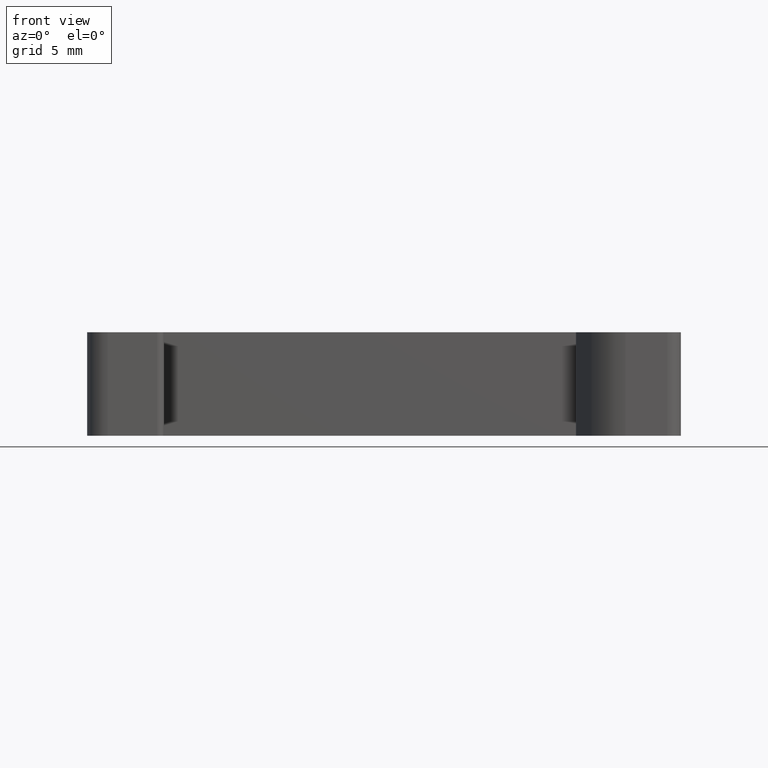
[diagram: clean part render]
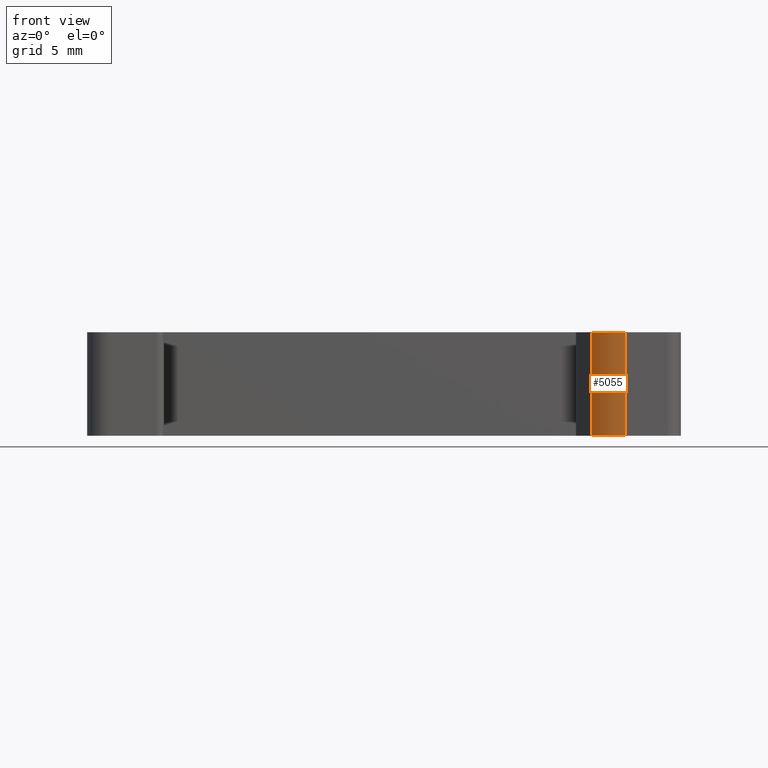
[diagram: same view with one face highlighted and labeled with its STEP entity id]
A machine part, front view. The second image highlights one B-rep face of the part: STEP entity #5055.
In plain terms, the highlighted cylindrical surface (partial cylindrical patch) has radius 3 mm, axis along (0, 0, -1).
Its self-contained STEP definition (entity closure, byte-faithful):
#78 = EDGE_LOOP ( 'NONE', ( #621, #644, #595, #588 ) ) ;
#588 = ORIENTED_EDGE ( 'NONE', *, *, #3712, .T. ) ;
#595 = ORIENTED_EDGE ( 'NONE', *, *, #3695, .T. ) ;
#621 = ORIENTED_EDGE ( 'NONE', *, *, #3733, .T. ) ;
#644 = ORIENTED_EDGE ( 'NONE', *, *, #3714, .T. ) ;
#1593 = CARTESIAN_POINT ( 'NONE',  ( 27.94609250397358500, -31.35797656976660600, 3.702940557380697800E-012 ) ) ;
#1629 = CARTESIAN_POINT ( 'NONE',  ( 30.40354850698706800, -32.63724701435248200, 7.499999999996208400 ) ) ;
#1641 = CARTESIAN_POINT ( 'NONE',  ( 27.94609250397358500, -31.35797656976660600, 7.499999999996208400 ) ) ;
#1645 = CARTESIAN_POINT ( 'NONE',  ( 30.40354850698706800, -32.63724707526569100, 3.703157397815194900E-012 ) ) ;
#1920 = VERTEX_POINT ( 'NONE', #1593 ) ;
#1931 = VERTEX_POINT ( 'NONE', #1629 ) ;
#1943 = VERTEX_POINT ( 'NONE', #1641 ) ;
#1945 = VERTEX_POINT ( 'NONE', #1645 ) ;
#2491 = VECTOR ( 'NONE', #4608, 1000.000000000000000 ) ;
#2495 = CIRCLE ( 'NONE', #2524, 2.999999999997001500 ) ;
#2497 = CIRCLE ( 'NONE', #2505, 2.999999999997001500 ) ;
#2505 = AXIS2_PLACEMENT_3D ( 'NONE', #4521, #4508, #4509 ) ;
#2514 = VECTOR ( 'NONE', #4590, 1000.000000000000000 ) ;
#2524 = AXIS2_PLACEMENT_3D ( 'NONE', #4629, #4630, #4631 ) ;
#2919 = AXIS2_PLACEMENT_3D ( 'NONE', #3389, #3395, #3366 ) ;
#3360 = CYLINDRICAL_SURFACE ( 'NONE', #2919, 2.999999999997001500 ) ;
#3362 = FACE_OUTER_BOUND ( 'NONE', #78, .T. ) ;
#3366 = DIRECTION ( 'NONE',  ( -1.000000000000000000, 0.0000000000000000000, 0.0000000000000000000 ) ) ;
#3389 = CARTESIAN_POINT ( 'NONE',  ( 30.40354850698706800, -29.63724707526870000, 3.749999999999953800 ) ) ;
#3395 = DIRECTION ( 'NONE',  ( 0.0000000000000000000, 0.0000000000000000000, -1.000000000000000000 ) ) ;
#3695 = EDGE_CURVE ( 'NONE', #1931, #1943, #2497, .T. ) ;
#3712 = EDGE_CURVE ( 'NONE', #1943, #1920, #4601, .T. ) ;
#3714 = EDGE_CURVE ( 'NONE', #1945, #1931, #4587, .T. ) ;
#3733 = EDGE_CURVE ( 'NONE', #1920, #1945, #2495, .T. ) ;
#4508 = DIRECTION ( 'NONE',  ( 0.0000000000000000000, 0.0000000000000000000, -1.000000000000000000 ) ) ;
#4509 = DIRECTION ( 'NONE',  ( -1.000000000000000000, 0.0000000000000000000, 0.0000000000000000000 ) ) ;
#4521 = CARTESIAN_POINT ( 'NONE',  ( 30.40354850698706800, -29.63724707526870000, 7.499999999996208400 ) ) ;
#4582 = CARTESIAN_POINT ( 'NONE',  ( 27.94609250397352100, -31.35797656976650700, 3.749999999999953800 ) ) ;
#4587 = LINE ( 'NONE', #4605, #2491 ) ;
#4590 = DIRECTION ( 'NONE',  ( 0.0000000000000000000, 0.0000000000000000000, -1.000000000000000000 ) ) ;
#4601 = LINE ( 'NONE', #4582, #2514 ) ;
#4605 = CARTESIAN_POINT ( 'NONE',  ( 30.40354850698706800, -32.63724707526569100, 3.749999999999953800 ) ) ;
#4608 = DIRECTION ( 'NONE',  ( 0.0000000000000000000, 0.0000000000000000000, 1.000000000000000000 ) ) ;
#4629 = CARTESIAN_POINT ( 'NONE',  ( 30.40354850698706800, -29.63724707526870000, 3.703200940341488900E-012 ) ) ;
#4630 = DIRECTION ( 'NONE',  ( -0.0000000000000000000, -0.0000000000000000000, 1.000000000000000000 ) ) ;
#4631 = DIRECTION ( 'NONE',  ( -1.000000000000000000, 1.156482317319027200E-015, 0.0000000000000000000 ) ) ;
#5055 = ADVANCED_FACE ( 'NONE', ( #3362 ), #3360, .T. ) ;